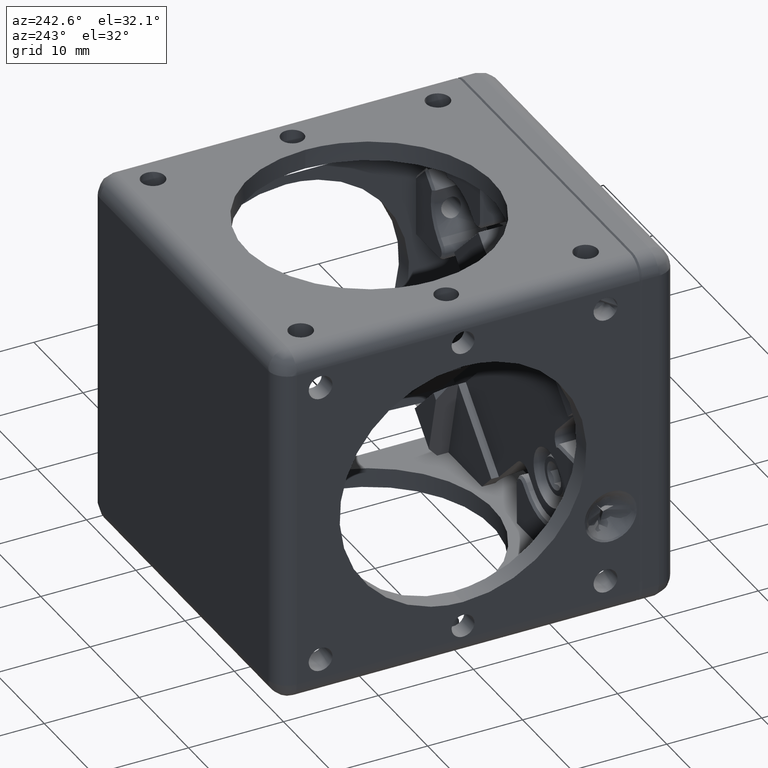
[diagram: clean part render]
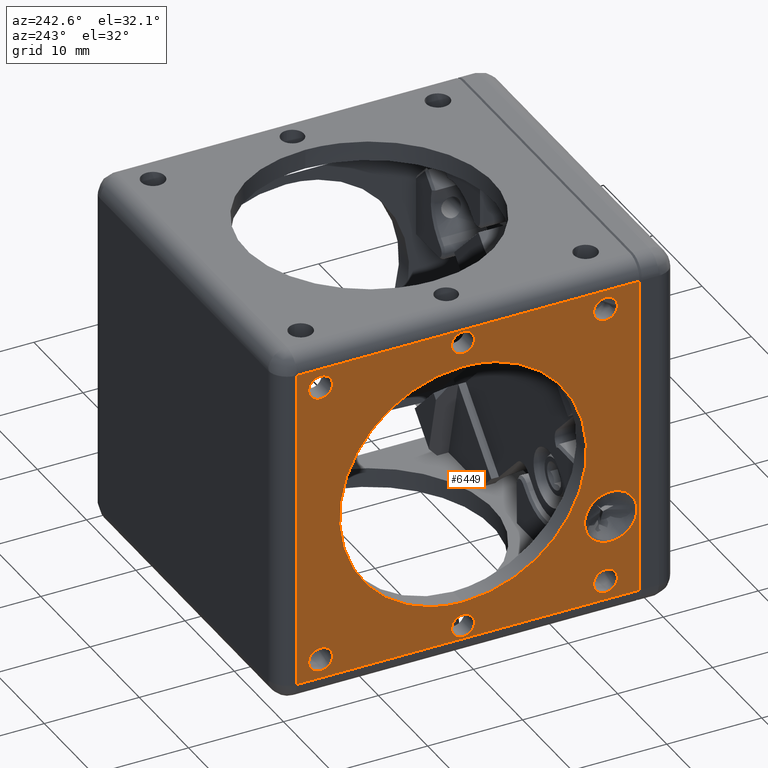
[diagram: same view with one face highlighted and labeled with its STEP entity id]
A machine part, auxiliary view. The second image highlights one B-rep face of the part: STEP entity #6449.
In plain terms, the highlighted face is a freeform B-spline surface patch.
Its self-contained STEP definition (entity closure, byte-faithful):
#16 = CARTESIAN_POINT ( 'NONE',  ( -19.05000000000000071, 20.60000000000000142, 14.41500000000000092 ) ) ;
#38 = CARTESIAN_POINT ( 'NONE',  ( -19.05000000000000071, 20.60000000000000142, -14.41500000000000092 ) ) ;
#134 = ORIENTED_EDGE ( 'NONE', *, *, #11387, .F. ) ;
#138 = CARTESIAN_POINT ( 'NONE',  ( -19.05000000000000071, 4.350000000000004086, -12.50000000000000533 ) ) ;
#206 = CARTESIAN_POINT ( 'NONE',  ( -19.05000000000000071, 36.85000000000000142, -15.00000000000000000 ) ) ;
#217 =( BOUNDED_CURVE ( )  B_SPLINE_CURVE ( 3, ( #10380, #9357, #1841, #12273 ),
 .UNSPECIFIED., .F., .F. ) 
 B_SPLINE_CURVE_WITH_KNOTS ( ( 4, 4 ),
 ( 0.000000000000000000, 1.000000000000000000 ),
 .UNSPECIFIED. ) 
 CURVE ( )  GEOMETRIC_REPRESENTATION_ITEM ( )  RATIONAL_B_SPLINE_CURVE ( ( 1.000000000000000000, 0.3333333333333329818, 0.3333333333333329818, 1.000000000000000000 ) ) 
 REPRESENTATION_ITEM ( '' )  );
#320 =( BOUNDED_CURVE ( )  B_SPLINE_CURVE ( 3, ( #11818, #12059, #3103, #6020 ),
 .UNSPECIFIED., .F., .F. ) 
 B_SPLINE_CURVE_WITH_KNOTS ( ( 4, 4 ),
 ( 0.000000000000000000, 1.000000000000000000 ),
 .UNSPECIFIED. ) 
 CURVE ( )  GEOMETRIC_REPRESENTATION_ITEM ( )  RATIONAL_B_SPLINE_CURVE ( ( 1.000000000000000000, 0.3333333333333340365, 0.3333333333333340365, 1.000000000000000000 ) ) 
 REPRESENTATION_ITEM ( '' )  );
#331 = CARTESIAN_POINT ( 'NONE',  ( -19.05000000000000071, 2.299999999999999822, -8.050000000000000711 ) ) ;
#332 = CARTESIAN_POINT ( 'NONE',  ( -19.05000000000000071, 36.85000000000000142, 15.00000000000000000 ) ) ;
#354 = ORIENTED_EDGE ( 'NONE', *, *, #3976, .F. ) ;
#374 = FACE_BOUND ( 'NONE', #378, .T. ) ;
#378 = EDGE_LOOP ( 'NONE', ( #10567, #12028 ) ) ;
#408 = VERTEX_POINT ( 'NONE', #6874 ) ;
#466 = CARTESIAN_POINT ( 'NONE',  ( -19.05000000000000071, 20.60000000000000142, -16.82499999999999929 ) ) ;
#493 = CARTESIAN_POINT ( 'NONE',  ( -19.05000000000000071, 38.10000000000000142, 17.05000000000000071 ) ) ;
#558 = CARTESIAN_POINT ( 'NONE',  ( -19.05000000000000071, 34.35000000000000142, -15.00000000000000000 ) ) ;
#583 = B_SPLINE_CURVE_WITH_KNOTS ( 'NONE', 1,
 ( #8458, #4796 ),
 .UNSPECIFIED., .F., .F.,
 ( 2, 2 ),
 ( 0.000000000000000000, 1.000000000000000000 ),
 .UNSPECIFIED. ) ;
#650 = EDGE_LOOP ( 'NONE', ( #11837, #9527 ) ) ;
#716 = EDGE_CURVE ( 'NONE', #6554, #9658, #1881, .T. ) ;
#738 = CARTESIAN_POINT ( 'NONE',  ( -19.05000000000000071, 36.85000000000000142, -15.00000000000000000 ) ) ;
#802 = CARTESIAN_POINT ( 'NONE',  ( -19.05000000000001492, 36.85000000000000142, -17.50000000000009592 ) ) ;
#803 = CARTESIAN_POINT ( 'NONE',  ( -19.05000000000000071, 20.60000000000000142, 13.00000000000000000 ) ) ;
#901 = CARTESIAN_POINT ( 'NONE',  ( -19.05000000000000071, 38.10000000000000142, 17.05000000000000071 ) ) ;
#950 = VERTEX_POINT ( 'NONE', #2470 ) ;
#953 = CARTESIAN_POINT ( 'NONE',  ( -19.05000000000000782, 2.299999999999995826, -2.549999999999962075 ) ) ;
#999 = CARTESIAN_POINT ( 'NONE',  ( -19.05000000000001492, 18.19000000000000838, 16.82500000000000639 ) ) ;
#1088 = ORIENTED_EDGE ( 'NONE', *, *, #5514, .F. ) ;
#1094 = EDGE_CURVE ( 'NONE', #1123, #4243, #7353, .T. ) ;
#1123 = VERTEX_POINT ( 'NONE', #5244 ) ;
#1132 = CARTESIAN_POINT ( 'NONE',  ( -19.05000000000000071, 4.349999999999999645, 15.00000000000000000 ) ) ;
#1253 = EDGE_LOOP ( 'NONE', ( #5042, #354 ) ) ;
#1270 = CARTESIAN_POINT ( 'NONE',  ( -19.05000000000000071, 7.799999999999999822, -8.050000000000000711 ) ) ;
#1374 = EDGE_LOOP ( 'NONE', ( #134, #1879 ) ) ;
#1413 = CARTESIAN_POINT ( 'NONE',  ( -19.05000000000000071, 38.10000000000000142, 17.05000000000000071 ) ) ;
#1502 = EDGE_CURVE ( 'NONE', #9658, #6554, #11667, .T. ) ;
#1537 =( BOUNDED_CURVE ( )  B_SPLINE_CURVE ( 3, ( #7744, #11561, #11751, #10800 ),
 .UNSPECIFIED., .F., .F. ) 
 B_SPLINE_CURVE_WITH_KNOTS ( ( 4, 4 ),
 ( 0.000000000000000000, 1.000000000000000000 ),
 .UNSPECIFIED. ) 
 CURVE ( )  GEOMETRIC_REPRESENTATION_ITEM ( )  RATIONAL_B_SPLINE_CURVE ( ( 1.000000000000000000, 0.3333333333333329818, 0.3333333333333329818, 1.000000000000000000 ) ) 
 REPRESENTATION_ITEM ( '' )  );
#1561 = B_SPLINE_SURFACE_WITH_KNOTS ( 'NONE', 1, 1, ( 
 ( #5261, #5200 ),
 ( #493, #4317 ) ),
 .UNSPECIFIED., .F., .F., .F.,
 ( 2, 2 ),
 ( 2, 2 ),
 ( 0.000000000000000000, 1.000000000000000000 ),
 ( 0.000000000000000000, 1.000000000000000000 ),
 .UNSPECIFIED. ) ;
#1812 = EDGE_CURVE ( 'NONE', #2275, #8233, #6530, .T. ) ;
#1841 = CARTESIAN_POINT ( 'NONE',  ( -19.05000000000010019, 34.35000000000002984, 12.50000000000000533 ) ) ;
#1848 = CARTESIAN_POINT ( 'NONE',  ( -19.05000000000000071, 7.799999999999999822, -8.050000000000000711 ) ) ;
#1874 =( BOUNDED_CURVE ( )  B_SPLINE_CURVE ( 3, ( #5169, #5289, #9186, #4408 ),
 .UNSPECIFIED., .F., .F. ) 
 B_SPLINE_CURVE_WITH_KNOTS ( ( 4, 4 ),
 ( 0.000000000000000000, 1.000000000000000000 ),
 .UNSPECIFIED. ) 
 CURVE ( )  GEOMETRIC_REPRESENTATION_ITEM ( )  RATIONAL_B_SPLINE_CURVE ( ( 1.000000000000000000, 0.3333333333333329818, 0.3333333333333329818, 1.000000000000000000 ) ) 
 REPRESENTATION_ITEM ( '' )  );
#1879 = ORIENTED_EDGE ( 'NONE', *, *, #10117, .F. ) ;
#1881 =( BOUNDED_CURVE ( )  B_SPLINE_CURVE ( 3, ( #5673, #953, #3892, #1848 ),
 .UNSPECIFIED., .F., .T. ) 
 B_SPLINE_CURVE_WITH_KNOTS ( ( 4, 4 ),
 ( 0.000000000000000000, 1.000000000000000000 ),
 .UNSPECIFIED. ) 
 CURVE ( )  GEOMETRIC_REPRESENTATION_ITEM ( )  RATIONAL_B_SPLINE_CURVE ( ( 1.000000000000000000, 0.3333333333333329818, 0.3333333333333329818, 1.000000000000000000 ) ) 
 REPRESENTATION_ITEM ( '' )  );
#2016 = CARTESIAN_POINT ( 'NONE',  ( -19.05000000000000071, 4.349999999999999645, 15.00000000000000000 ) ) ;
#2038 = CARTESIAN_POINT ( 'NONE',  ( -19.05000000000000782, 34.35000000000002984, -12.50000000000001599 ) ) ;
#2059 = CARTESIAN_POINT ( 'NONE',  ( -19.05000000000001492, 18.19000000000000838, -14.41500000000001691 ) ) ;
#2094 =( BOUNDED_CURVE ( )  B_SPLINE_CURVE ( 3, ( #4991, #8061, #10978, #6125 ),
 .UNSPECIFIED., .F., .T. ) 
 B_SPLINE_CURVE_WITH_KNOTS ( ( 4, 4 ),
 ( 0.000000000000000000, 1.000000000000000000 ),
 .UNSPECIFIED. ) 
 CURVE ( )  GEOMETRIC_REPRESENTATION_ITEM ( )  RATIONAL_B_SPLINE_CURVE ( ( 1.000000000000000000, 0.3333333333333329818, 0.3333333333333329818, 1.000000000000000000 ) ) 
 REPRESENTATION_ITEM ( '' )  );
#2210 = CARTESIAN_POINT ( 'NONE',  ( -19.05000000000000071, 6.850000000000000533, 15.00000000000000000 ) ) ;
#2248 = EDGE_CURVE ( 'NONE', #8346, #11323, #4516, .T. ) ;
#2266 = FACE_BOUND ( 'NONE', #7812, .T. ) ;
#2275 = VERTEX_POINT ( 'NONE', #6580 ) ;
#2332 = FACE_BOUND ( 'NONE', #6420, .T. ) ;
#2464 = VERTEX_POINT ( 'NONE', #7916 ) ;
#2470 = CARTESIAN_POINT ( 'NONE',  ( -19.05000000000000071, 4.349999999999999645, -14.99999999999982059 ) ) ;
#2555 = VERTEX_POINT ( 'NONE', #6294 ) ;
#2610 = CARTESIAN_POINT ( 'NONE',  ( -19.05000000000000071, 4.349999999998762412, -17.50000000000070344 ) ) ;
#2704 = EDGE_CURVE ( 'NONE', #9526, #950, #7637, .T. ) ;
#2765 = VERTEX_POINT ( 'NONE', #10575 ) ;
#2777 = ORIENTED_EDGE ( 'NONE', *, *, #1502, .F. ) ;
#2838 = CARTESIAN_POINT ( 'NONE',  ( -19.05000000000001492, 18.19000000000000838, -16.82500000000000639 ) ) ;
#2928 = CARTESIAN_POINT ( 'NONE',  ( -19.05000000000000071, 20.60000000000000142, 16.82499999999999929 ) ) ;
#3092 = B_SPLINE_CURVE_WITH_KNOTS ( 'NONE', 1,
 ( #901, #11479 ),
 .UNSPECIFIED., .F., .F.,
 ( 2, 2 ),
 ( 0.000000000000000000, 1.000000000000000000 ),
 .UNSPECIFIED. ) ;
#3103 = CARTESIAN_POINT ( 'NONE',  ( -19.05000000000001492, 46.59999999999994458, -12.99999999999999289 ) ) ;
#3289 = EDGE_CURVE ( 'NONE', #4243, #1123, #320, .T. ) ;
#3391 = EDGE_LOOP ( 'NONE', ( #6720, #6046 ) ) ;
#3398 = CARTESIAN_POINT ( 'NONE',  ( -19.05000000000000071, 20.60000000000000142, -13.00000000000000000 ) ) ;
#3502 = VERTEX_POINT ( 'NONE', #5166 ) ;
#3664 = CARTESIAN_POINT ( 'NONE',  ( -19.05000000000000071, 2.299999999999999822, -8.050000000000000711 ) ) ;
#3892 = CARTESIAN_POINT ( 'NONE',  ( -19.05000000000000782, 7.800000000000025580, -2.549999999999962075 ) ) ;
#3976 = EDGE_CURVE ( 'NONE', #7149, #2555, #5735, .T. ) ;
#4243 = VERTEX_POINT ( 'NONE', #803 ) ;
#4317 = CARTESIAN_POINT ( 'NONE',  ( -19.05000000000000071, 38.10000000000000142, -17.05000000000000071 ) ) ;
#4334 = CARTESIAN_POINT ( 'NONE',  ( -19.05000000000000071, 20.60000000000000142, 16.82499999999999929 ) ) ;
#4408 = CARTESIAN_POINT ( 'NONE',  ( -19.05000000000000071, 20.60000000000000142, 14.41500000000000092 ) ) ;
#4516 = B_SPLINE_CURVE_WITH_KNOTS ( 'NONE', 1,
 ( #8197, #6709 ),
 .UNSPECIFIED., .F., .F.,
 ( 2, 2 ),
 ( 0.000000000000000000, 1.000000000000000000 ),
 .UNSPECIFIED. ) ;
#4535 = ORIENTED_EDGE ( 'NONE', *, *, #3289, .F. ) ;
#4697 =( BOUNDED_CURVE ( )  B_SPLINE_CURVE ( 3, ( #4911, #2038, #9936, #206 ),
 .UNSPECIFIED., .F., .F. ) 
 B_SPLINE_CURVE_WITH_KNOTS ( ( 4, 4 ),
 ( 0.000000000000000000, 1.000000000000000000 ),
 .UNSPECIFIED. ) 
 CURVE ( )  GEOMETRIC_REPRESENTATION_ITEM ( )  RATIONAL_B_SPLINE_CURVE ( ( 1.000000000000000000, 0.3333333333333329818, 0.3333333333333329818, 1.000000000000000000 ) ) 
 REPRESENTATION_ITEM ( '' )  );
#4796 = CARTESIAN_POINT ( 'NONE',  ( -19.05000000000000071, 38.10000000000000142, -17.05000000000000071 ) ) ;
#4911 = CARTESIAN_POINT ( 'NONE',  ( -19.05000000000000071, 34.35000000000000142, -15.00000000000000000 ) ) ;
#4991 = CARTESIAN_POINT ( 'NONE',  ( -19.05000000000000071, 20.60000000000000142, -14.41500000000000092 ) ) ;
#5042 = ORIENTED_EDGE ( 'NONE', *, *, #9191, .F. ) ;
#5072 = CARTESIAN_POINT ( 'NONE',  ( -19.05000000000009308, 4.350000000000004086, 17.50000000000000711 ) ) ;
#5076 = CARTESIAN_POINT ( 'NONE',  ( -19.05000000000008598, 4.350000000000004086, 12.50000000000000533 ) ) ;
#5081 = CARTESIAN_POINT ( 'NONE',  ( -19.05000000000000071, 6.850000000000000533, -15.00000000000000000 ) ) ;
#5134 = CARTESIAN_POINT ( 'NONE',  ( -19.05000000000000071, 6.850000000000000533, 15.00000000000000000 ) ) ;
#5166 = CARTESIAN_POINT ( 'NONE',  ( -19.05000000000000071, 34.35000000000000142, -15.00000000000000000 ) ) ;
#5169 = CARTESIAN_POINT ( 'NONE',  ( -19.05000000000000071, 20.60000000000000142, 16.82499999999999929 ) ) ;
#5200 = CARTESIAN_POINT ( 'NONE',  ( -19.05000000000000071, 2.000000000000000000, -17.05000000000000071 ) ) ;
#5223 = CARTESIAN_POINT ( 'NONE',  ( -19.05000000000000071, 6.850000000000000533, -15.00000000000000000 ) ) ;
#5244 = CARTESIAN_POINT ( 'NONE',  ( -19.05000000000000071, 20.60000000000000142, -13.00000000000000000 ) ) ;
#5261 = CARTESIAN_POINT ( 'NONE',  ( -19.05000000000000071, 2.000000000000000000, 17.05000000000000071 ) ) ;
#5289 = CARTESIAN_POINT ( 'NONE',  ( -19.05000000000001492, 23.01000000000002288, 16.82500000000000639 ) ) ;
#5300 = CARTESIAN_POINT ( 'NONE',  ( -19.05000000000001492, -5.400000000000005684, 13.00000000000000533 ) ) ;
#5433 =( BOUNDED_CURVE ( )  B_SPLINE_CURVE ( 3, ( #2016, #5072, #8018, #5134 ),
 .UNSPECIFIED., .F., .F. ) 
 B_SPLINE_CURVE_WITH_KNOTS ( ( 4, 4 ),
 ( 0.000000000000000000, 1.000000000000000000 ),
 .UNSPECIFIED. ) 
 CURVE ( )  GEOMETRIC_REPRESENTATION_ITEM ( )  RATIONAL_B_SPLINE_CURVE ( ( 1.000000000000000000, 0.3333333333333329818, 0.3333333333333329818, 1.000000000000000000 ) ) 
 REPRESENTATION_ITEM ( '' )  );
#5514 = EDGE_CURVE ( 'NONE', #11323, #2765, #583, .T. ) ;
#5673 = CARTESIAN_POINT ( 'NONE',  ( -19.05000000000000071, 2.299999999999999822, -8.050000000000000711 ) ) ;
#5700 = EDGE_LOOP ( 'NONE', ( #6293, #1088, #6687, #5763 ) ) ;
#5735 =( BOUNDED_CURVE ( )  B_SPLINE_CURVE ( 3, ( #11557, #2838, #2059, #38 ),
 .UNSPECIFIED., .F., .F. ) 
 B_SPLINE_CURVE_WITH_KNOTS ( ( 4, 4 ),
 ( 0.000000000000000000, 1.000000000000000000 ),
 .UNSPECIFIED. ) 
 CURVE ( )  GEOMETRIC_REPRESENTATION_ITEM ( )  RATIONAL_B_SPLINE_CURVE ( ( 1.000000000000000000, 0.3333333333333329818, 0.3333333333333329818, 1.000000000000000000 ) ) 
 REPRESENTATION_ITEM ( '' )  );
#5763 = ORIENTED_EDGE ( 'NONE', *, *, #9414, .F. ) ;
#5782 = CARTESIAN_POINT ( 'NONE',  ( -19.05000000000000071, 38.10000000000000142, 17.05000000000000071 ) ) ;
#5910 = EDGE_CURVE ( 'NONE', #3502, #2464, #4697, .T. ) ;
#5969 = CARTESIAN_POINT ( 'NONE',  ( -19.05000000000001492, 18.19000000000000838, 14.41500000000001691 ) ) ;
#5990 = VERTEX_POINT ( 'NONE', #332 ) ;
#6020 = CARTESIAN_POINT ( 'NONE',  ( -19.05000000000000071, 20.60000000000000142, -13.00000000000000000 ) ) ;
#6046 = ORIENTED_EDGE ( 'NONE', *, *, #11086, .F. ) ;
#6125 = CARTESIAN_POINT ( 'NONE',  ( -19.05000000000000071, 20.60000000000000142, -16.82499999999999929 ) ) ;
#6150 = FACE_BOUND ( 'NONE', #1253, .T. ) ;
#6209 = FACE_BOUND ( 'NONE', #650, .T. ) ;
#6221 = ORIENTED_EDGE ( 'NONE', *, *, #12119, .F. ) ;
#6293 = ORIENTED_EDGE ( 'NONE', *, *, #9346, .F. ) ;
#6294 = CARTESIAN_POINT ( 'NONE',  ( -19.05000000000000071, 20.60000000000000142, -14.41500000000000092 ) ) ;
#6420 = EDGE_LOOP ( 'NONE', ( #6221, #9929 ) ) ;
#6449 = ADVANCED_FACE ( 'NONE', ( #7124, #2266, #2332, #6150, #374, #6209, #10040, #10103, #9211 ), #1561, .T. ) ;
#6530 =( BOUNDED_CURVE ( )  B_SPLINE_CURVE ( 3, ( #2210, #11062, #5076, #1132 ),
 .UNSPECIFIED., .F., .F. ) 
 B_SPLINE_CURVE_WITH_KNOTS ( ( 4, 4 ),
 ( 0.000000000000000000, 1.000000000000000000 ),
 .UNSPECIFIED. ) 
 CURVE ( )  GEOMETRIC_REPRESENTATION_ITEM ( )  RATIONAL_B_SPLINE_CURVE ( ( 1.000000000000000000, 0.3333333333333329818, 0.3333333333333329818, 1.000000000000000000 ) ) 
 REPRESENTATION_ITEM ( '' )  );
#6554 = VERTEX_POINT ( 'NONE', #3664 ) ;
#6580 = CARTESIAN_POINT ( 'NONE',  ( -19.05000000000000071, 6.850000000000000533, 15.00000000000000000 ) ) ;
#6687 = ORIENTED_EDGE ( 'NONE', *, *, #2248, .F. ) ;
#6709 = CARTESIAN_POINT ( 'NONE',  ( -19.05000000000000071, 2.000000000000000000, -17.05000000000000071 ) ) ;
#6720 = ORIENTED_EDGE ( 'NONE', *, *, #1812, .F. ) ;
#6874 = CARTESIAN_POINT ( 'NONE',  ( -19.05000000000000071, 34.35000000000000142, 15.00000000000000000 ) ) ;
#7124 = FACE_BOUND ( 'NONE', #9017, .T. ) ;
#7149 = VERTEX_POINT ( 'NONE', #466 ) ;
#7262 = CARTESIAN_POINT ( 'NONE',  ( -19.04999999999998650, 7.800000000000006928, -13.54999999999999005 ) ) ;
#7353 =( BOUNDED_CURVE ( )  B_SPLINE_CURVE ( 3, ( #3398, #8069, #5300, #11106 ),
 .UNSPECIFIED., .F., .F. ) 
 B_SPLINE_CURVE_WITH_KNOTS ( ( 4, 4 ),
 ( 0.000000000000000000, 1.000000000000000000 ),
 .UNSPECIFIED. ) 
 CURVE ( )  GEOMETRIC_REPRESENTATION_ITEM ( )  RATIONAL_B_SPLINE_CURVE ( ( 1.000000000000000000, 0.3333333333333329818, 0.3333333333333329818, 1.000000000000000000 ) ) 
 REPRESENTATION_ITEM ( '' )  );
#7436 = CARTESIAN_POINT ( 'NONE',  ( -19.05000000000001492, 34.35000000000002984, -17.50000000000009592 ) ) ;
#7450 = CARTESIAN_POINT ( 'NONE',  ( -19.05000000000000071, 6.850000000000007638, -17.50000000000130385 ) ) ;
#7637 =( BOUNDED_CURVE ( )  B_SPLINE_CURVE ( 3, ( #8410, #7450, #2610, #11334 ),
 .UNSPECIFIED., .F., .F. ) 
 B_SPLINE_CURVE_WITH_KNOTS ( ( 4, 4 ),
 ( 0.000000000000000000, 1.000000000000000000 ),
 .UNSPECIFIED. ) 
 CURVE ( )  GEOMETRIC_REPRESENTATION_ITEM ( )  RATIONAL_B_SPLINE_CURVE ( ( 1.000000000000000000, 0.3333333333331660042, 0.3333333333331660042, 1.000000000000000000 ) ) 
 REPRESENTATION_ITEM ( '' )  );
#7744 = CARTESIAN_POINT ( 'NONE',  ( -19.05000000000000071, 34.35000000000000142, 15.00000000000000000 ) ) ;
#7812 = EDGE_LOOP ( 'NONE', ( #4535, #10486 ) ) ;
#7916 = CARTESIAN_POINT ( 'NONE',  ( -19.05000000000000071, 36.85000000000000142, -15.00000000000000000 ) ) ;
#8018 = CARTESIAN_POINT ( 'NONE',  ( -19.05000000000009308, 6.850000000000027178, 17.50000000000000711 ) ) ;
#8061 = CARTESIAN_POINT ( 'NONE',  ( -19.05000000000001492, 23.01000000000002288, -14.41500000000001691 ) ) ;
#8069 = CARTESIAN_POINT ( 'NONE',  ( -19.05000000000001492, -5.400000000000005684, -13.00000000000000533 ) ) ;
#8108 = B_SPLINE_CURVE_WITH_KNOTS ( 'NONE', 1,
 ( #11415, #1413 ),
 .UNSPECIFIED., .F., .F.,
 ( 2, 2 ),
 ( 0.000000000000000000, 1.000000000000000000 ),
 .UNSPECIFIED. ) ;
#8167 = VERTEX_POINT ( 'NONE', #4334 ) ;
#8197 = CARTESIAN_POINT ( 'NONE',  ( -19.05000000000000071, 2.000000000000000000, 17.05000000000000071 ) ) ;
#8233 = VERTEX_POINT ( 'NONE', #10647 ) ;
#8293 = EDGE_CURVE ( 'NONE', #950, #9526, #10816, .T. ) ;
#8346 = VERTEX_POINT ( 'NONE', #12450 ) ;
#8410 = CARTESIAN_POINT ( 'NONE',  ( -19.05000000000000071, 6.850000000000000533, -15.00000000000000000 ) ) ;
#8454 = VERTEX_POINT ( 'NONE', #16 ) ;
#8458 = CARTESIAN_POINT ( 'NONE',  ( -19.05000000000000071, 2.000000000000000000, -17.05000000000000071 ) ) ;
#8675 = EDGE_CURVE ( 'NONE', #8454, #8167, #10884, .T. ) ;
#9017 = EDGE_LOOP ( 'NONE', ( #2777, #10937 ) ) ;
#9053 = CARTESIAN_POINT ( 'NONE',  ( -19.04999999999998650, 2.300000000000014477, -13.54999999999999005 ) ) ;
#9186 = CARTESIAN_POINT ( 'NONE',  ( -19.05000000000001492, 23.01000000000002288, 14.41500000000001691 ) ) ;
#9191 = EDGE_CURVE ( 'NONE', #2555, #7149, #2094, .T. ) ;
#9211 = FACE_OUTER_BOUND ( 'NONE', #5700, .T. ) ;
#9298 = CARTESIAN_POINT ( 'NONE',  ( -19.05000000000000071, 7.799999999999999822, -8.050000000000000711 ) ) ;
#9346 = EDGE_CURVE ( 'NONE', #2765, #11029, #8108, .T. ) ;
#9357 = CARTESIAN_POINT ( 'NONE',  ( -19.05000000000010019, 36.85000000000000142, 12.50000000000000533 ) ) ;
#9414 = EDGE_CURVE ( 'NONE', #11029, #8346, #3092, .T. ) ;
#9526 = VERTEX_POINT ( 'NONE', #5223 ) ;
#9527 = ORIENTED_EDGE ( 'NONE', *, *, #8293, .F. ) ;
#9658 = VERTEX_POINT ( 'NONE', #9298 ) ;
#9927 = CARTESIAN_POINT ( 'NONE',  ( -19.05000000000000071, 6.850000000000011191, -12.50000000000000533 ) ) ;
#9929 = ORIENTED_EDGE ( 'NONE', *, *, #8675, .F. ) ;
#9936 = CARTESIAN_POINT ( 'NONE',  ( -19.05000000000000782, 36.85000000000000142, -12.50000000000001599 ) ) ;
#10040 = FACE_BOUND ( 'NONE', #3391, .T. ) ;
#10103 = FACE_BOUND ( 'NONE', #1374, .T. ) ;
#10117 = EDGE_CURVE ( 'NONE', #408, #5990, #1537, .T. ) ;
#10245 =( BOUNDED_CURVE ( )  B_SPLINE_CURVE ( 3, ( #738, #802, #7436, #558 ),
 .UNSPECIFIED., .F., .F. ) 
 B_SPLINE_CURVE_WITH_KNOTS ( ( 4, 4 ),
 ( 0.000000000000000000, 1.000000000000000000 ),
 .UNSPECIFIED. ) 
 CURVE ( )  GEOMETRIC_REPRESENTATION_ITEM ( )  RATIONAL_B_SPLINE_CURVE ( ( 1.000000000000000000, 0.3333333333333329818, 0.3333333333333329818, 1.000000000000000000 ) ) 
 REPRESENTATION_ITEM ( '' )  );
#10380 = CARTESIAN_POINT ( 'NONE',  ( -19.05000000000000071, 36.85000000000000142, 15.00000000000000000 ) ) ;
#10486 = ORIENTED_EDGE ( 'NONE', *, *, #1094, .F. ) ;
#10567 = ORIENTED_EDGE ( 'NONE', *, *, #11633, .F. ) ;
#10575 = CARTESIAN_POINT ( 'NONE',  ( -19.05000000000000071, 38.10000000000000142, -17.05000000000000071 ) ) ;
#10647 = CARTESIAN_POINT ( 'NONE',  ( -19.05000000000000071, 4.349999999999999645, 15.00000000000000000 ) ) ;
#10800 = CARTESIAN_POINT ( 'NONE',  ( -19.05000000000000071, 36.85000000000000142, 15.00000000000000000 ) ) ;
#10816 =( BOUNDED_CURVE ( )  B_SPLINE_CURVE ( 3, ( #10889, #138, #9927, #5081 ),
 .UNSPECIFIED., .F., .F. ) 
 B_SPLINE_CURVE_WITH_KNOTS ( ( 4, 4 ),
 ( 0.000000000000000000, 1.000000000000000000 ),
 .UNSPECIFIED. ) 
 CURVE ( )  GEOMETRIC_REPRESENTATION_ITEM ( )  RATIONAL_B_SPLINE_CURVE ( ( 1.000000000000000000, 0.3333333333333329818, 0.3333333333333329818, 1.000000000000000000 ) ) 
 REPRESENTATION_ITEM ( '' )  );
#10884 =( BOUNDED_CURVE ( )  B_SPLINE_CURVE ( 3, ( #11643, #5969, #999, #2928 ),
 .UNSPECIFIED., .F., .F. ) 
 B_SPLINE_CURVE_WITH_KNOTS ( ( 4, 4 ),
 ( 0.000000000000000000, 1.000000000000000000 ),
 .UNSPECIFIED. ) 
 CURVE ( )  GEOMETRIC_REPRESENTATION_ITEM ( )  RATIONAL_B_SPLINE_CURVE ( ( 1.000000000000000000, 0.3333333333333329818, 0.3333333333333329818, 1.000000000000000000 ) ) 
 REPRESENTATION_ITEM ( '' )  );
#10889 = CARTESIAN_POINT ( 'NONE',  ( -19.05000000000000071, 4.349999999999999645, -14.99999999999982059 ) ) ;
#10937 = ORIENTED_EDGE ( 'NONE', *, *, #716, .F. ) ;
#10978 = CARTESIAN_POINT ( 'NONE',  ( -19.05000000000001492, 23.01000000000002288, -16.82500000000000639 ) ) ;
#11029 = VERTEX_POINT ( 'NONE', #5782 ) ;
#11062 = CARTESIAN_POINT ( 'NONE',  ( -19.05000000000008598, 6.850000000000027178, 12.50000000000000533 ) ) ;
#11086 = EDGE_CURVE ( 'NONE', #8233, #2275, #5433, .T. ) ;
#11106 = CARTESIAN_POINT ( 'NONE',  ( -19.05000000000000071, 20.60000000000000142, 13.00000000000000000 ) ) ;
#11323 = VERTEX_POINT ( 'NONE', #12474 ) ;
#11334 = CARTESIAN_POINT ( 'NONE',  ( -19.05000000000000071, 4.349999999999999645, -14.99999999999982059 ) ) ;
#11387 = EDGE_CURVE ( 'NONE', #5990, #408, #217, .T. ) ;
#11415 = CARTESIAN_POINT ( 'NONE',  ( -19.05000000000000071, 38.10000000000000142, -17.05000000000000071 ) ) ;
#11479 = CARTESIAN_POINT ( 'NONE',  ( -19.05000000000000071, 2.000000000000000000, 17.05000000000000071 ) ) ;
#11557 = CARTESIAN_POINT ( 'NONE',  ( -19.05000000000000071, 20.60000000000000142, -16.82499999999999929 ) ) ;
#11561 = CARTESIAN_POINT ( 'NONE',  ( -19.05000000000010374, 34.35000000000002984, 17.49999999999991829 ) ) ;
#11633 = EDGE_CURVE ( 'NONE', #2464, #3502, #10245, .T. ) ;
#11643 = CARTESIAN_POINT ( 'NONE',  ( -19.05000000000000071, 20.60000000000000142, 14.41500000000000092 ) ) ;
#11667 =( BOUNDED_CURVE ( )  B_SPLINE_CURVE ( 3, ( #1270, #7262, #9053, #331 ),
 .UNSPECIFIED., .F., .F. ) 
 B_SPLINE_CURVE_WITH_KNOTS ( ( 4, 4 ),
 ( 0.000000000000000000, 1.000000000000000000 ),
 .UNSPECIFIED. ) 
 CURVE ( )  GEOMETRIC_REPRESENTATION_ITEM ( )  RATIONAL_B_SPLINE_CURVE ( ( 1.000000000000000000, 0.3333333333333330373, 0.3333333333333330373, 1.000000000000000000 ) ) 
 REPRESENTATION_ITEM ( '' )  );
#11751 = CARTESIAN_POINT ( 'NONE',  ( -19.05000000000010374, 36.85000000000000142, 17.49999999999991829 ) ) ;
#11818 = CARTESIAN_POINT ( 'NONE',  ( -19.05000000000000071, 20.60000000000000142, 13.00000000000000000 ) ) ;
#11837 = ORIENTED_EDGE ( 'NONE', *, *, #2704, .F. ) ;
#12028 = ORIENTED_EDGE ( 'NONE', *, *, #5910, .F. ) ;
#12059 = CARTESIAN_POINT ( 'NONE',  ( -19.05000000000001492, 46.59999999999994458, 12.99999999999999289 ) ) ;
#12119 = EDGE_CURVE ( 'NONE', #8167, #8454, #1874, .T. ) ;
#12273 = CARTESIAN_POINT ( 'NONE',  ( -19.05000000000000071, 34.35000000000000142, 15.00000000000000000 ) ) ;
#12450 = CARTESIAN_POINT ( 'NONE',  ( -19.05000000000000071, 2.000000000000000000, 17.05000000000000071 ) ) ;
#12474 = CARTESIAN_POINT ( 'NONE',  ( -19.05000000000000071, 2.000000000000000000, -17.05000000000000071 ) ) ;